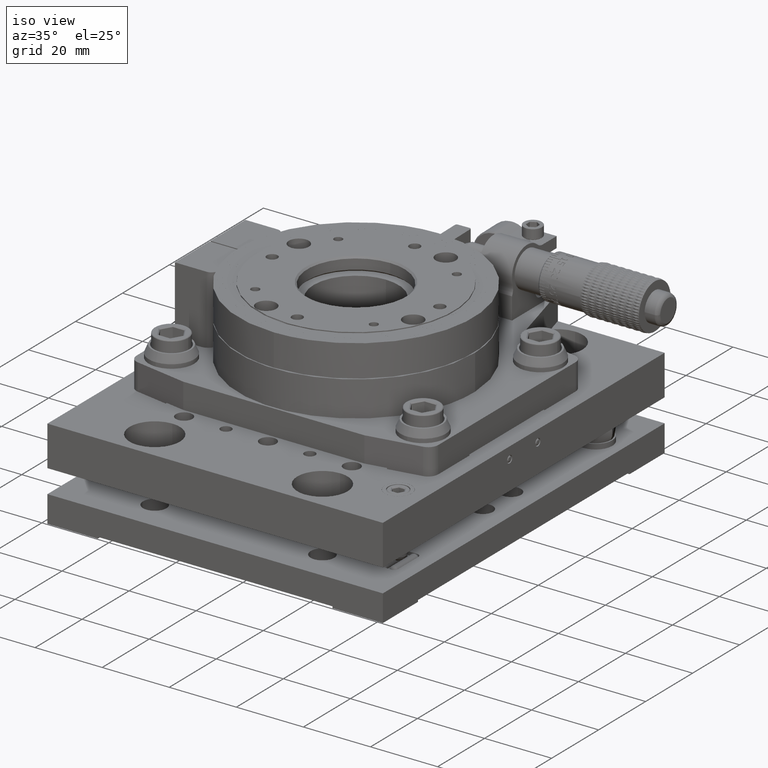
[diagram: clean part render]
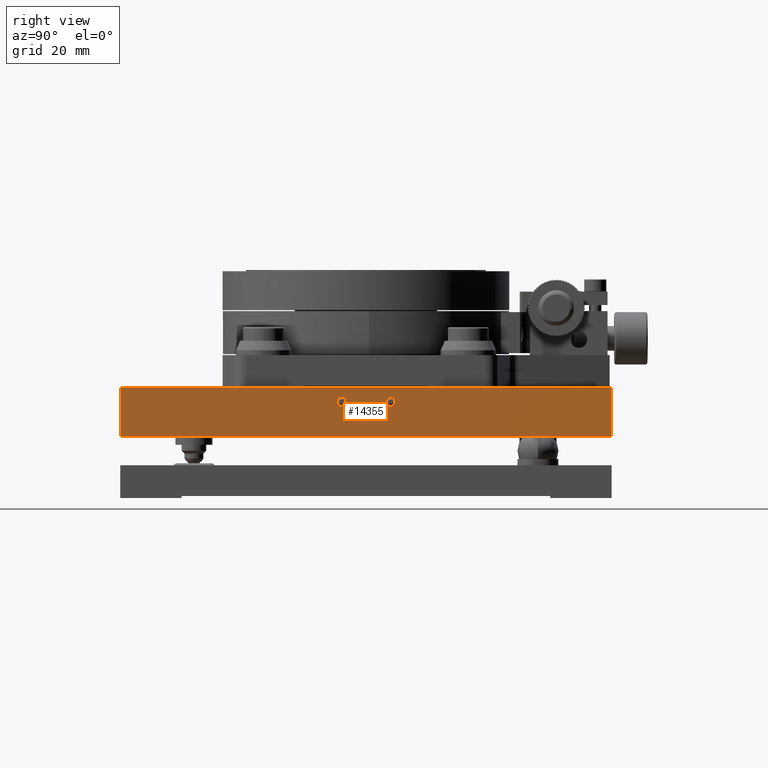
[diagram: tour spotlight — one face highlighted and labeled with its STEP entity id]
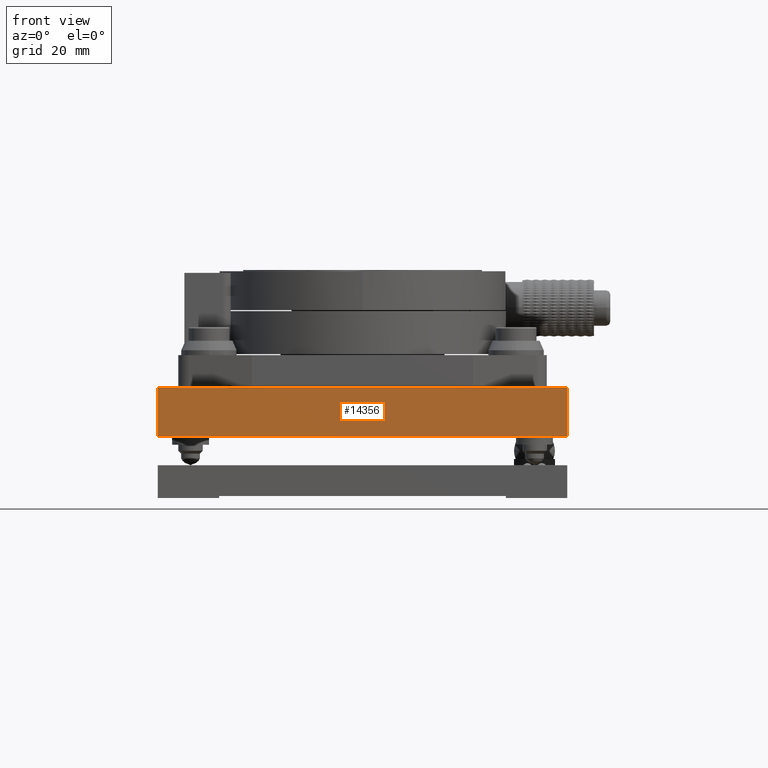
[diagram: tour spotlight — one face highlighted and labeled with its STEP entity id]
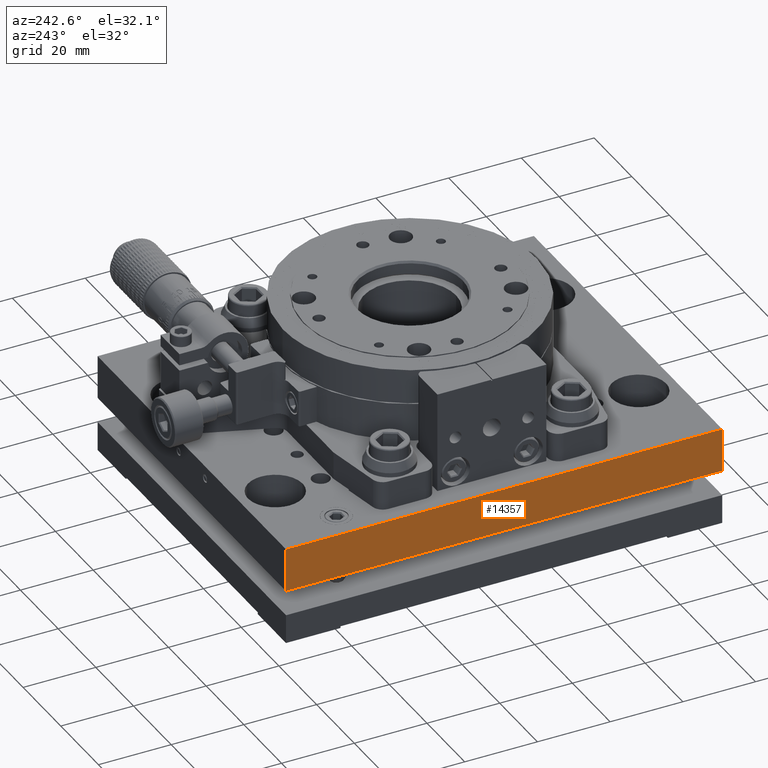
[diagram: tour spotlight — one face highlighted and labeled with its STEP entity id]
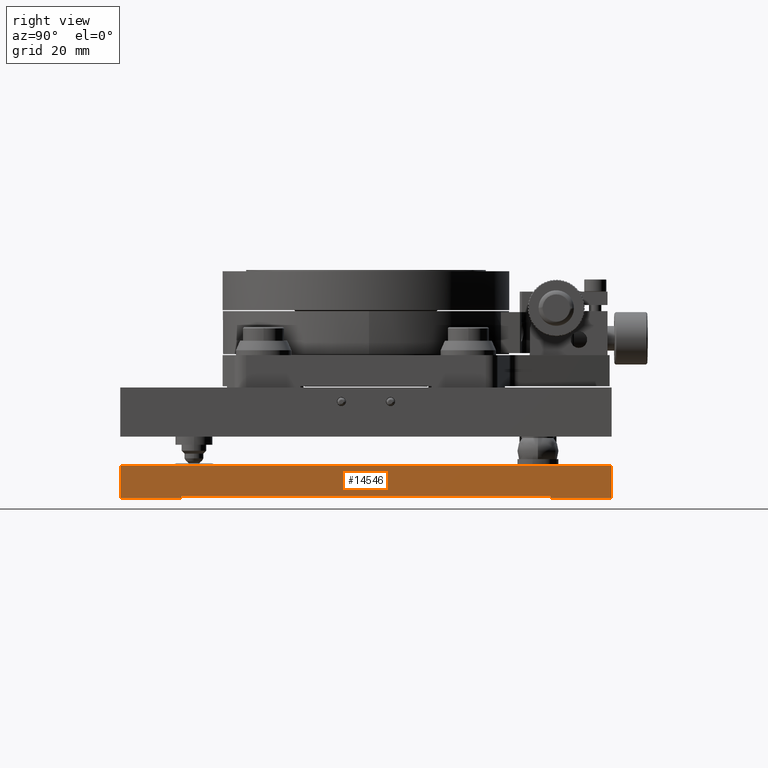
[diagram: tour spotlight — one face highlighted and labeled with its STEP entity id]
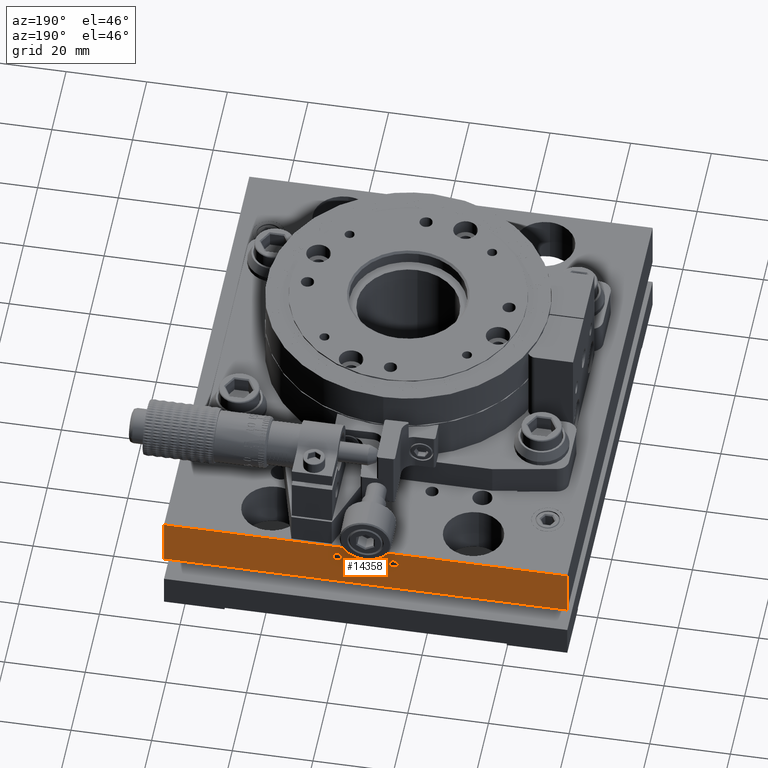
[diagram: tour spotlight — one face highlighted and labeled with its STEP entity id]
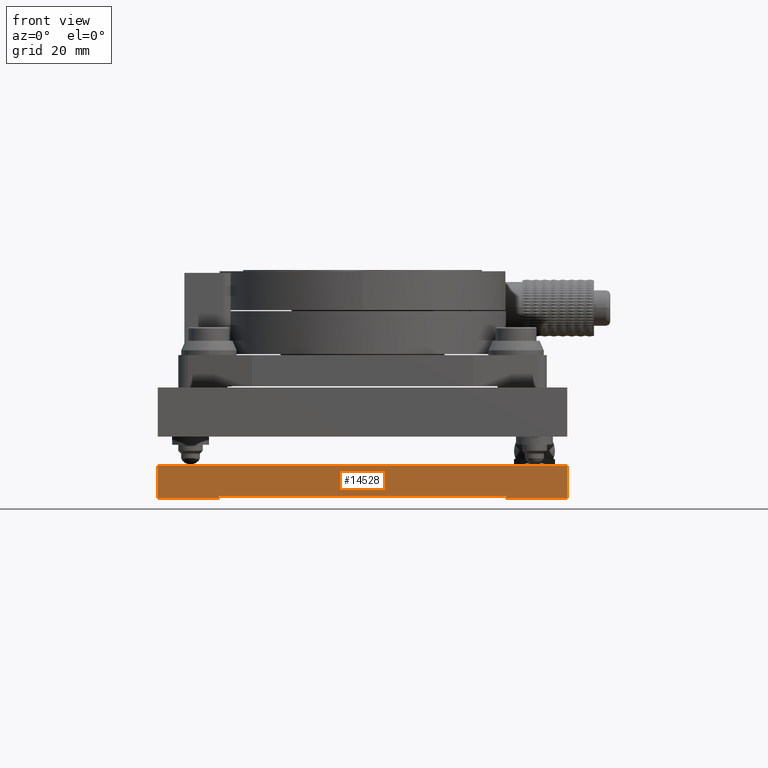
[diagram: tour spotlight — one face highlighted and labeled with its STEP entity id]
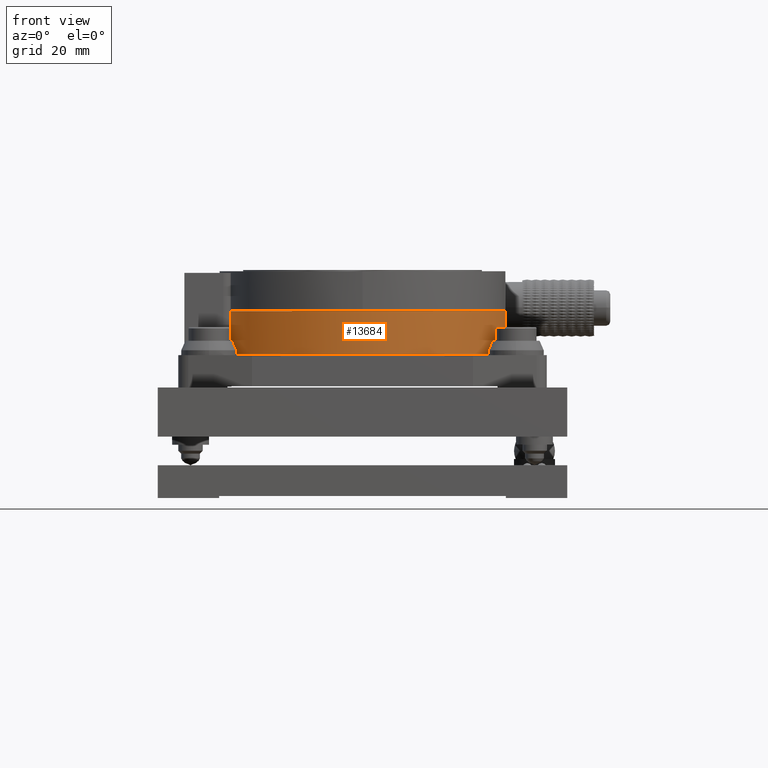
[diagram: tour spotlight — one face highlighted and labeled with its STEP entity id]
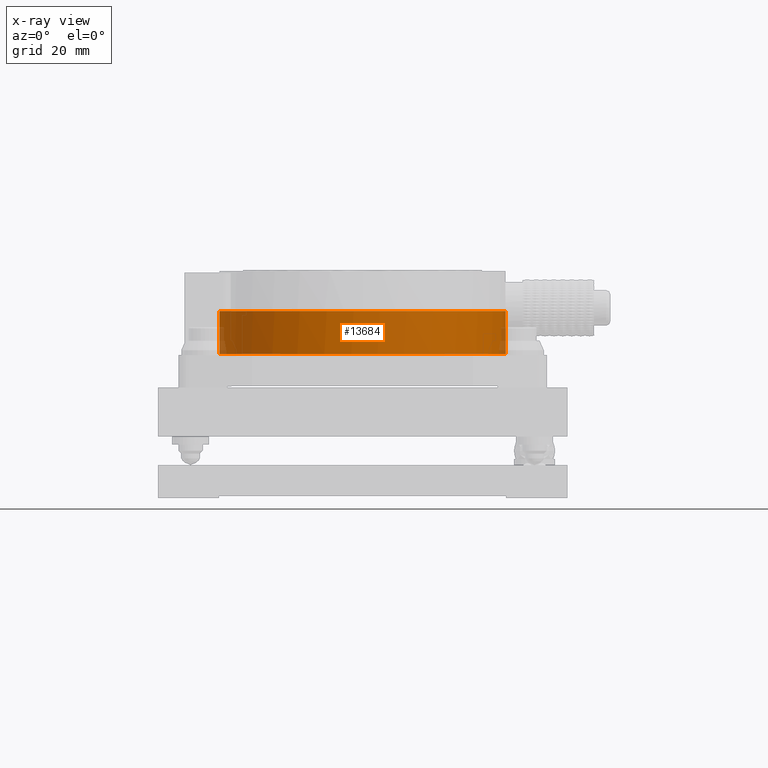
[diagram: x-ray of the same camera — body ghosted, this tour face saturated]
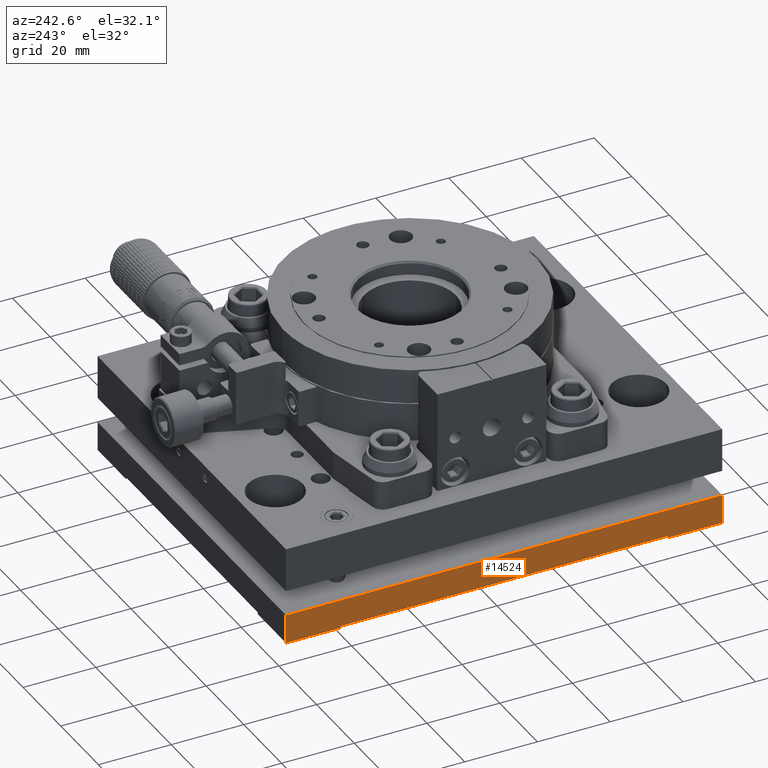
[diagram: tour spotlight — one face highlighted and labeled with its STEP entity id]
A machine part: a face-by-face anatomy tour. The part has 6025 B-rep faces; the first image is the clean iso view, then the 8 largest visible faces are spotlighted one at a time (largest first), each with its STEP entity span.

Face 1 — right view, entity #14355. In plain terms, the highlighted planar face has unit normal (1, 0, 0).
Definition (entity closure, byte-faithful):
#8463=FACE_BOUND('',#26957,.T.);
#8464=FACE_BOUND('',#26958,.T.);
#14355=ADVANCED_FACE('',(#20380,#8463,#8464),#110229,.T.);
#20380=FACE_OUTER_BOUND('',#26956,.T.);
#26956=EDGE_LOOP('',(#60093,#60094,#60095,#60096));
#26957=EDGE_LOOP('',(#60097,#60098,#60099,#60100));
#26958=EDGE_LOOP('',(#60101,#60102,#60103,#60104));
#60093=ORIENTED_EDGE('',*,*,#77681,.T.);
#60094=ORIENTED_EDGE('',*,*,#77682,.T.);
#60095=ORIENTED_EDGE('',*,*,#77683,.T.);
#60096=ORIENTED_EDGE('',*,*,#77622,.T.);
#60097=ORIENTED_EDGE('',*,*,#77468,.T.);
#60098=ORIENTED_EDGE('',*,*,#77467,.T.);
#60099=ORIENTED_EDGE('',*,*,#77466,.T.);
#60100=ORIENTED_EDGE('',*,*,#77701,.T.);
#60101=ORIENTED_EDGE('',*,*,#77476,.T.);
#60102=ORIENTED_EDGE('',*,*,#77475,.T.);
#60103=ORIENTED_EDGE('',*,*,#77474,.T.);
#60104=ORIENTED_EDGE('',*,*,#77707,.T.);
#77466=EDGE_CURVE('',#105369,#105543,#94764,.T.);
#77467=EDGE_CURVE('',#105371,#105369,#94765,.T.);
#77468=EDGE_CURVE('',#105370,#105371,#94766,.T.);
#77474=EDGE_CURVE('',#105381,#105547,#94770,.T.);
#77475=EDGE_CURVE('',#105383,#105381,#94771,.T.);
#77476=EDGE_CURVE('',#105382,#105383,#94772,.T.);
#77622=EDGE_CURVE('',#105508,#105506,#92714,.T.);
#77681=EDGE_CURVE('',#105506,#105532,#92747,.T.);
#77682=EDGE_CURVE('',#105532,#105533,#92748,.T.);
#77683=EDGE_CURVE('',#105533,#105508,#92749,.T.);
#77701=EDGE_CURVE('',#105543,#105370,#94905,.T.);
#77707=EDGE_CURVE('',#105547,#105382,#94907,.T.);
#92714=B_SPLINE_CURVE_WITH_KNOTS('',1,(#192679,#192680),.UNSPECIFIED.,.F.,
 .F.,(2,2),(-120.,0.),.UNSPECIFIED.);
#92747=B_SPLINE_CURVE_WITH_KNOTS('',1,(#193277,#193278),.UNSPECIFIED.,.F.,
 .F.,(2,2),(0.,12.),.UNSPECIFIED.);
#92748=B_SPLINE_CURVE_WITH_KNOTS('',1,(#193279,#193280),.UNSPECIFIED.,.F.,
 .F.,(2,2),(0.,120.),.UNSPECIFIED.);
#92749=B_SPLINE_CURVE_WITH_KNOTS('',1,(#193281,#193282),.UNSPECIFIED.,.F.,
 .F.,(2,2),(0.,12.),.UNSPECIFIED.);
#94764=(
BOUNDED_CURVE()
B_SPLINE_CURVE(2,(#191895,#191896,#191897),.UNSPECIFIED.,.F.,.F.)
B_SPLINE_CURVE_WITH_KNOTS((3,3),(-3.45575191894877,-1.72787595947439),
 .UNSPECIFIED.)
CURVE()
GEOMETRIC_REPRESENTATION_ITEM()
RATIONAL_B_SPLINE_CURVE((1.,0.707106781186547,1.))
REPRESENTATION_ITEM('')
);
#94765=(
BOUNDED_CURVE()
B_SPLINE_CURVE(2,(#191898,#191899,#191900),.UNSPECIFIED.,.F.,.F.)
B_SPLINE_CURVE_WITH_KNOTS((3,3),(-1.72787595947439,0.),.UNSPECIFIED.)
CURVE()
GEOMETRIC_REPRESENTATION_ITEM()
RATIONAL_B_SPLINE_CURVE((1.,0.707106781186548,1.))
REPRESENTATION_ITEM('')
);
#94766=(
BOUNDED_CURVE()
B_SPLINE_CURVE(2,(#191901,#191902,#191903),.UNSPECIFIED.,.F.,.F.)
B_SPLINE_CURVE_WITH_KNOTS((3,3),(-3.45575191894877,-1.72787595947439),
 .UNSPECIFIED.)
CURVE()
GEOMETRIC_REPRESENTATION_ITEM()
RATIONAL_B_SPLINE_CURVE((1.,0.707106781186548,1.))
REPRESENTATION_ITEM('')
);
#94770=(
BOUNDED_CURVE()
B_SPLINE_CURVE(2,(#191917,#191918,#191919),.UNSPECIFIED.,.F.,.F.)
B_SPLINE_CURVE_WITH_KNOTS((3,3),(-3.45575191894877,-1.72787595947439),
 .UNSPECIFIED.)
CURVE()
GEOMETRIC_REPRESENTATION_ITEM()
RATIONAL_B_SPLINE_CURVE((1.,0.707106781186548,1.))
REPRESENTATION_ITEM('')
);
#94771=(
BOUNDED_CURVE()
B_SPLINE_CURVE(2,(#191920,#191921,#191922),.UNSPECIFIED.,.F.,.F.)
B_SPLINE_CURVE_WITH_KNOTS((3,3),(-1.72787595947439,0.),.UNSPECIFIED.)
CURVE()
GEOMETRIC_REPRESENTATION_ITEM()
RATIONAL_B_SPLINE_CURVE((1.,0.707106781186548,1.))
REPRESENTATION_ITEM('')
);
#94772=(
BOUNDED_CURVE()
B_SPLINE_CURVE(2,(#191923,#191924,#191925),.UNSPECIFIED.,.F.,.F.)
B_SPLINE_CURVE_WITH_KNOTS((3,3),(-3.45575191894877,-1.72787595947439),
 .UNSPECIFIED.)
CURVE()
GEOMETRIC_REPRESENTATION_ITEM()
RATIONAL_B_SPLINE_CURVE((1.,0.707106781186548,1.))
REPRESENTATION_ITEM('')
);
#94905=(
BOUNDED_CURVE()
B_SPLINE_CURVE(2,(#193353,#193354,#193355),.UNSPECIFIED.,.F.,.F.)
B_SPLINE_CURVE_WITH_KNOTS((3,3),(-1.72787595947439,0.),.UNSPECIFIED.)
CURVE()
GEOMETRIC_REPRESENTATION_ITEM()
RATIONAL_B_SPLINE_CURVE((1.,0.707106781186548,1.))
REPRESENTATION_ITEM('')
);
#94907=(
BOUNDED_CURVE()
B_SPLINE_CURVE(2,(#193413,#193414,#193415),.UNSPECIFIED.,.F.,.F.)
B_SPLINE_CURVE_WITH_KNOTS((3,3),(-1.72787595947439,0.),.UNSPECIFIED.)
CURVE()
GEOMETRIC_REPRESENTATION_ITEM()
RATIONAL_B_SPLINE_CURVE((1.,0.707106781186548,1.))
REPRESENTATION_ITEM('')
);
#105369=VERTEX_POINT('',#191586);
#105370=VERTEX_POINT('',#191587);
#105371=VERTEX_POINT('',#191588);
#105381=VERTEX_POINT('',#191598);
#105382=VERTEX_POINT('',#191599);
#105383=VERTEX_POINT('',#191600);
#105506=VERTEX_POINT('',#191723);
#105508=VERTEX_POINT('',#191725);
#105532=VERTEX_POINT('',#191749);
#105533=VERTEX_POINT('',#191750);
#105543=VERTEX_POINT('',#191760);
#105547=VERTEX_POINT('',#191764);
#110229=PLANE('',#116189);
#116189=AXIS2_PLACEMENT_3D('',#191511,#121337,$);
#121337=DIRECTION('',(1.,0.,0.));
#191511=CARTESIAN_POINT('',(44.7501054007326,-76.5277156503218,28.3201011709705));
#191586=CARTESIAN_POINT('',(44.7501054007326,2.69228434967825,23.5001011709705));
#191587=CARTESIAN_POINT('',(44.7501054007326,0.492284349678258,23.5001011709705));
#191588=CARTESIAN_POINT('',(44.7501054007326,1.59228434967825,24.6001011709705));
#191598=CARTESIAN_POINT('',(44.7501054007326,-9.30771565032174,23.5001011709705));
#191599=CARTESIAN_POINT('',(44.7501054007326,-11.5077156503217,23.5001011709705));
#191600=CARTESIAN_POINT('',(44.7501054007326,-10.4077156503217,24.6001011709705));
#191723=CARTESIAN_POINT('',(44.7501054007326,-64.4077156503217,27.0001011709705));
#191725=CARTESIAN_POINT('',(44.7501054007326,55.5922843496783,27.0001011709705));
#191749=CARTESIAN_POINT('',(44.7501054007326,-64.4077156503217,15.0001011709705));
#191750=CARTESIAN_POINT('',(44.7501054007326,55.5922843496783,15.0001011709705));
#191760=CARTESIAN_POINT('',(44.7501054007326,1.59228434967825,22.4001011709705));
#191764=CARTESIAN_POINT('',(44.7501054007326,-10.4077156503217,22.4001011709705));
#191895=CARTESIAN_POINT('',(44.7501054007326,2.69228434967825,23.5001011709705));
#191896=CARTESIAN_POINT('',(44.7501054007326,2.69228434967825,22.4001011709705));
#191897=CARTESIAN_POINT('',(44.7501054007326,1.59228434967825,22.4001011709705));
#191898=CARTESIAN_POINT('',(44.7501054007326,1.59228434967825,24.6001011709705));
#191899=CARTESIAN_POINT('',(44.7501054007326,2.69228434967825,24.6001011709705));
#191900=CARTESIAN_POINT('',(44.7501054007326,2.69228434967825,23.5001011709705));
#191901=CARTESIAN_POINT('',(44.7501054007326,0.492284349678252,23.5001011709705));
#191902=CARTESIAN_POINT('',(44.7501054007326,0.492284349678252,24.6001011709705));
#191903=CARTESIAN_POINT('',(44.7501054007326,1.59228434967825,24.6001011709705));
#191917=CARTESIAN_POINT('',(44.7501054007326,-9.30771565032174,23.5001011709705));
#191918=CARTESIAN_POINT('',(44.7501054007326,-9.30771565032174,22.4001011709705));
#191919=CARTESIAN_POINT('',(44.7501054007326,-10.4077156503217,22.4001011709705));
#191920=CARTESIAN_POINT('',(44.7501054007326,-10.4077156503217,24.6001011709705));
#191921=CARTESIAN_POINT('',(44.7501054007326,-9.30771565032174,24.6001011709705));
#191922=CARTESIAN_POINT('',(44.7501054007326,-9.30771565032174,23.5001011709705));
#191923=CARTESIAN_POINT('',(44.7501054007326,-11.5077156503217,23.5001011709705));
#191924=CARTESIAN_POINT('',(44.7501054007326,-11.5077156503217,24.6001011709705));
#191925=CARTESIAN_POINT('',(44.7501054007326,-10.4077156503217,24.6001011709705));
#192679=CARTESIAN_POINT('',(44.7501054007326,55.5922843496783,27.0001011709705));
#192680=CARTESIAN_POINT('',(44.7501054007326,-64.4077156503217,27.0001011709705));
#193277=CARTESIAN_POINT('',(44.7501054007326,-64.4077156503217,27.0001011709705));
#193278=CARTESIAN_POINT('',(44.7501054007326,-64.4077156503217,15.0001011709705));
#193279=CARTESIAN_POINT('',(44.7501054007326,-64.4077156503217,15.0001011709705));
#193280=CARTESIAN_POINT('',(44.7501054007326,55.5922843496783,15.0001011709705));
#193281=CARTESIAN_POINT('',(44.7501054007326,55.5922843496783,15.0001011709705));
#193282=CARTESIAN_POINT('',(44.7501054007326,55.5922843496783,27.0001011709705));
#193353=CARTESIAN_POINT('',(44.7501054007326,1.59228434967825,22.4001011709705));
#193354=CARTESIAN_POINT('',(44.7501054007326,0.492284349678252,22.4001011709705));
#193355=CARTESIAN_POINT('',(44.7501054007326,0.492284349678252,23.5001011709705));
#193413=CARTESIAN_POINT('',(44.7501054007326,-10.4077156503217,22.4001011709705));
#193414=CARTESIAN_POINT('',(44.7501054007326,-11.5077156503217,22.4001011709705));
#193415=CARTESIAN_POINT('',(44.7501054007326,-11.5077156503217,23.5001011709705));

Face 2 — front view, entity #14356. In plain terms, the highlighted planar face has unit normal (0, -1, 0).
Definition (entity closure, byte-faithful):
#14356=ADVANCED_FACE('',(#20381),#110230,.T.);
#20381=FACE_OUTER_BOUND('',#26959,.T.);
#26959=EDGE_LOOP('',(#60105,#60106,#60107,#60108));
#60105=ORIENTED_EDGE('',*,*,#77684,.T.);
#60106=ORIENTED_EDGE('',*,*,#77685,.T.);
#60107=ORIENTED_EDGE('',*,*,#77681,.F.);
#60108=ORIENTED_EDGE('',*,*,#77621,.T.);
#77621=EDGE_CURVE('',#105506,#105507,#92713,.T.);
#77681=EDGE_CURVE('',#105506,#105532,#92747,.T.);
#77684=EDGE_CURVE('',#105507,#105534,#92750,.T.);
#77685=EDGE_CURVE('',#105534,#105532,#92751,.T.);
#92713=B_SPLINE_CURVE_WITH_KNOTS('',1,(#192677,#192678),.UNSPECIFIED.,.F.,
 .F.,(2,2),(-100.,0.),.UNSPECIFIED.);
#92747=B_SPLINE_CURVE_WITH_KNOTS('',1,(#193277,#193278),.UNSPECIFIED.,.F.,
 .F.,(2,2),(0.,12.),.UNSPECIFIED.);
#92750=B_SPLINE_CURVE_WITH_KNOTS('',1,(#193283,#193284),.UNSPECIFIED.,.F.,
 .F.,(2,2),(0.,12.),.UNSPECIFIED.);
#92751=B_SPLINE_CURVE_WITH_KNOTS('',1,(#193285,#193286),.UNSPECIFIED.,.F.,
 .F.,(2,2),(0.,100.),.UNSPECIFIED.);
#105506=VERTEX_POINT('',#191723);
#105507=VERTEX_POINT('',#191724);
#105532=VERTEX_POINT('',#191749);
#105534=VERTEX_POINT('',#191751);
#110230=PLANE('',#116190);
#116190=AXIS2_PLACEMENT_3D('',#191512,#121338,$);
#121338=DIRECTION('',(0.,-1.,0.));
#191512=CARTESIAN_POINT('',(-65.3698945992674,-64.4077156503217,28.3201011709705));
#191723=CARTESIAN_POINT('',(44.7501054007326,-64.4077156503217,27.0001011709705));
#191724=CARTESIAN_POINT('',(-55.2498945992674,-64.4077156503217,27.0001011709705));
#191749=CARTESIAN_POINT('',(44.7501054007326,-64.4077156503217,15.0001011709705));
#191751=CARTESIAN_POINT('',(-55.2498945992674,-64.4077156503217,15.0001011709705));
#192677=CARTESIAN_POINT('',(44.7501054007326,-64.4077156503217,27.0001011709705));
#192678=CARTESIAN_POINT('',(-55.2498945992674,-64.4077156503217,27.0001011709705));
#193277=CARTESIAN_POINT('',(44.7501054007326,-64.4077156503217,27.0001011709705));
#193278=CARTESIAN_POINT('',(44.7501054007326,-64.4077156503217,15.0001011709705));
#193283=CARTESIAN_POINT('',(-55.2498945992674,-64.4077156503217,27.0001011709705));
#193284=CARTESIAN_POINT('',(-55.2498945992674,-64.4077156503217,15.0001011709705));
#193285=CARTESIAN_POINT('',(-55.2498945992674,-64.4077156503217,15.0001011709705));
#193286=CARTESIAN_POINT('',(44.7501054007326,-64.4077156503217,15.0001011709705));

Face 3 — auxiliary view, entity #14357. In plain terms, the highlighted planar face has unit normal (-1, 0, 0).
Definition (entity closure, byte-faithful):
#14357=ADVANCED_FACE('',(#20382),#110231,.T.);
#20382=FACE_OUTER_BOUND('',#26960,.T.);
#26960=EDGE_LOOP('',(#60109,#60110,#60111,#60112));
#60109=ORIENTED_EDGE('',*,*,#77686,.T.);
#60110=ORIENTED_EDGE('',*,*,#77687,.T.);
#60111=ORIENTED_EDGE('',*,*,#77684,.F.);
#60112=ORIENTED_EDGE('',*,*,#77624,.T.);
#77624=EDGE_CURVE('',#105507,#105509,#92716,.T.);
#77684=EDGE_CURVE('',#105507,#105534,#92750,.T.);
#77686=EDGE_CURVE('',#105509,#105535,#92752,.T.);
#77687=EDGE_CURVE('',#105535,#105534,#92753,.T.);
#92716=B_SPLINE_CURVE_WITH_KNOTS('',1,(#192683,#192684),.UNSPECIFIED.,.F.,
 .F.,(2,2),(-120.,0.),.UNSPECIFIED.);
#92750=B_SPLINE_CURVE_WITH_KNOTS('',1,(#193283,#193284),.UNSPECIFIED.,.F.,
 .F.,(2,2),(0.,12.),.UNSPECIFIED.);
#92752=B_SPLINE_CURVE_WITH_KNOTS('',1,(#193287,#193288),.UNSPECIFIED.,.F.,
 .F.,(2,2),(0.,12.),.UNSPECIFIED.);
#92753=B_SPLINE_CURVE_WITH_KNOTS('',1,(#193289,#193290),.UNSPECIFIED.,.F.,
 .F.,(2,2),(0.,120.),.UNSPECIFIED.);
#105507=VERTEX_POINT('',#191724);
#105509=VERTEX_POINT('',#191726);
#105534=VERTEX_POINT('',#191751);
#105535=VERTEX_POINT('',#191752);
#110231=PLANE('',#116191);
#116191=AXIS2_PLACEMENT_3D('',#191513,#121339,$);
#121339=DIRECTION('',(-1.,0.,0.));
#191513=CARTESIAN_POINT('',(-55.2498945992674,-76.5277156503218,13.6801011709705));
#191724=CARTESIAN_POINT('',(-55.2498945992674,-64.4077156503217,27.0001011709705));
#191726=CARTESIAN_POINT('',(-55.2498945992674,55.5922843496783,27.0001011709705));
#191751=CARTESIAN_POINT('',(-55.2498945992674,-64.4077156503217,15.0001011709705));
#191752=CARTESIAN_POINT('',(-55.2498945992674,55.5922843496783,15.0001011709705));
#192683=CARTESIAN_POINT('',(-55.2498945992674,-64.4077156503217,27.0001011709705));
#192684=CARTESIAN_POINT('',(-55.2498945992674,55.5922843496783,27.0001011709705));
#193283=CARTESIAN_POINT('',(-55.2498945992674,-64.4077156503217,27.0001011709705));
#193284=CARTESIAN_POINT('',(-55.2498945992674,-64.4077156503217,15.0001011709705));
#193287=CARTESIAN_POINT('',(-55.2498945992674,55.5922843496783,27.0001011709705));
#193288=CARTESIAN_POINT('',(-55.2498945992674,55.5922843496783,15.0001011709705));
#193289=CARTESIAN_POINT('',(-55.2498945992674,55.5922843496783,15.0001011709705));
#193290=CARTESIAN_POINT('',(-55.2498945992674,-64.4077156503217,15.0001011709705));

Face 4 — right view, entity #14546. In plain terms, the highlighted planar face has unit normal (1, 0, 0).
Definition (entity closure, byte-faithful):
#14546=ADVANCED_FACE('',(#20571),#110300,.T.);
#20571=FACE_OUTER_BOUND('',#27216,.T.);
#27216=EDGE_LOOP('',(#61120,#61121,#61122,#61123,#61124,#61125,#61126,#61127));
#61120=ORIENTED_EDGE('',*,*,#78003,.T.);
#61121=ORIENTED_EDGE('',*,*,#78119,.T.);
#61122=ORIENTED_EDGE('',*,*,#78081,.F.);
#61123=ORIENTED_EDGE('',*,*,#77988,.F.);
#61124=ORIENTED_EDGE('',*,*,#78089,.F.);
#61125=ORIENTED_EDGE('',*,*,#78087,.T.);
#61126=ORIENTED_EDGE('',*,*,#78005,.T.);
#61127=ORIENTED_EDGE('',*,*,#78019,.T.);
#77988=EDGE_CURVE('',#105735,#105736,#92879,.T.);
#78003=EDGE_CURVE('',#105759,#105760,#92894,.T.);
#78005=EDGE_CURVE('',#105763,#105761,#92896,.T.);
#78019=EDGE_CURVE('',#105761,#105759,#92910,.T.);
#78081=EDGE_CURVE('',#105736,#105818,#92948,.T.);
#78087=EDGE_CURVE('',#105820,#105763,#92954,.T.);
#78089=EDGE_CURVE('',#105820,#105735,#92956,.T.);
#78119=EDGE_CURVE('',#105760,#105818,#92965,.T.);
#92879=B_SPLINE_CURVE_WITH_KNOTS('',1,(#195233,#195234),.UNSPECIFIED.,.F.,
 .F.,(2,2),(0.,120.),.UNSPECIFIED.);
#92894=B_SPLINE_CURVE_WITH_KNOTS('',1,(#195263,#195264),.UNSPECIFIED.,.F.,
 .F.,(2,2),(-0.5,0.),.UNSPECIFIED.);
#92896=B_SPLINE_CURVE_WITH_KNOTS('',1,(#195267,#195268),.UNSPECIFIED.,.F.,
 .F.,(2,2),(-0.5,0.),.UNSPECIFIED.);
#92910=B_SPLINE_CURVE_WITH_KNOTS('',1,(#195295,#195296),.UNSPECIFIED.,.F.,
 .F.,(2,2),(-90.,0.),.UNSPECIFIED.);
#92948=B_SPLINE_CURVE_WITH_KNOTS('',1,(#195459,#195460),.UNSPECIFIED.,.F.,
 .F.,(2,2),(0.,8.),.UNSPECIFIED.);
#92954=B_SPLINE_CURVE_WITH_KNOTS('',1,(#195471,#195472),.UNSPECIFIED.,.F.,
 .F.,(2,2),(-15.,0.),.UNSPECIFIED.);
#92956=B_SPLINE_CURVE_WITH_KNOTS('',1,(#195475,#195476),.UNSPECIFIED.,.F.,
 .F.,(2,2),(0.,8.),.UNSPECIFIED.);
#92965=B_SPLINE_CURVE_WITH_KNOTS('',1,(#195582,#195583),.UNSPECIFIED.,.F.,
 .F.,(2,2),(-15.,0.),.UNSPECIFIED.);
#105735=VERTEX_POINT('',#194979);
#105736=VERTEX_POINT('',#194980);
#105759=VERTEX_POINT('',#195003);
#105760=VERTEX_POINT('',#195004);
#105761=VERTEX_POINT('',#195005);
#105763=VERTEX_POINT('',#195007);
#105818=VERTEX_POINT('',#195062);
#105820=VERTEX_POINT('',#195064);
#110300=PLANE('',#116350);
#116350=AXIS2_PLACEMENT_3D('',#194910,#121498,$);
#121498=DIRECTION('',(1.,0.,0.));
#194910=CARTESIAN_POINT('',(44.7501054007325,-76.5277156503218,8.92010117097049));
#194979=CARTESIAN_POINT('',(44.7501054007325,-64.4077156503218,8.00010117097048));
#194980=CARTESIAN_POINT('',(44.7501054007325,55.5922843496782,8.00010117097048));
#195003=CARTESIAN_POINT('',(44.7501054007325,40.5922843496782,0.500101170970486));
#195004=CARTESIAN_POINT('',(44.7501054007325,40.5922843496782,0.000101170970485676));
#195005=CARTESIAN_POINT('',(44.7501054007325,-49.4077156503218,0.500101170970486));
#195007=CARTESIAN_POINT('',(44.7501054007325,-49.4077156503218,0.000101170970485676));
#195062=CARTESIAN_POINT('',(44.7501054007325,55.5922843496782,0.000101170970485676));
#195064=CARTESIAN_POINT('',(44.7501054007325,-64.4077156503218,0.000101170970485676));
#195233=CARTESIAN_POINT('',(44.7501054007325,-64.4077156503218,8.00010117097048));
#195234=CARTESIAN_POINT('',(44.7501054007325,55.5922843496782,8.00010117097048));
#195263=CARTESIAN_POINT('',(44.7501054007325,40.5922843496782,0.500101170970486));
#195264=CARTESIAN_POINT('',(44.7501054007325,40.5922843496782,0.000101170970485676));
#195267=CARTESIAN_POINT('',(44.7501054007325,-49.4077156503218,0.000101170970485676));
#195268=CARTESIAN_POINT('',(44.7501054007325,-49.4077156503218,0.500101170970486));
#195295=CARTESIAN_POINT('',(44.7501054007325,-49.4077156503218,0.500101170970486));
#195296=CARTESIAN_POINT('',(44.7501054007325,40.5922843496782,0.500101170970486));
#195459=CARTESIAN_POINT('',(44.7501054007325,55.5922843496782,8.00010117097048));
#195460=CARTESIAN_POINT('',(44.7501054007325,55.5922843496782,0.000101170970485676));
#195471=CARTESIAN_POINT('',(44.7501054007325,-64.4077156503218,0.000101170970485676));
#195472=CARTESIAN_POINT('',(44.7501054007325,-49.4077156503218,0.000101170970485676));
#195475=CARTESIAN_POINT('',(44.7501054007325,-64.4077156503218,0.000101170970485676));
#195476=CARTESIAN_POINT('',(44.7501054007325,-64.4077156503218,8.00010117097048));
#195582=CARTESIAN_POINT('',(44.7501054007325,40.5922843496782,0.000101170970485676));
#195583=CARTESIAN_POINT('',(44.7501054007325,55.5922843496782,0.000101170970485676));

Face 5 — auxiliary view, entity #14358. In plain terms, the highlighted planar face has unit normal (0, 1, 0).
Definition (entity closure, byte-faithful):
#8465=FACE_BOUND('',#26962,.T.);
#8466=FACE_BOUND('',#26963,.T.);
#14358=ADVANCED_FACE('',(#20383,#8465,#8466),#110232,.T.);
#20383=FACE_OUTER_BOUND('',#26961,.T.);
#26961=EDGE_LOOP('',(#60113,#60114,#60115,#60116));
#26962=EDGE_LOOP('',(#60117,#60118,#60119,#60120));
#26963=EDGE_LOOP('',(#60121,#60122,#60123,#60124));
#60113=ORIENTED_EDGE('',*,*,#77683,.F.);
#60114=ORIENTED_EDGE('',*,*,#77688,.T.);
#60115=ORIENTED_EDGE('',*,*,#77686,.F.);
#60116=ORIENTED_EDGE('',*,*,#77623,.T.);
#60117=ORIENTED_EDGE('',*,*,#77487,.T.);
#60118=ORIENTED_EDGE('',*,*,#77486,.T.);
#60119=ORIENTED_EDGE('',*,*,#77485,.T.);
#60120=ORIENTED_EDGE('',*,*,#77712,.T.);
#60121=ORIENTED_EDGE('',*,*,#77499,.T.);
#60122=ORIENTED_EDGE('',*,*,#77498,.T.);
#60123=ORIENTED_EDGE('',*,*,#77497,.T.);
#60124=ORIENTED_EDGE('',*,*,#77716,.T.);
#77485=EDGE_CURVE('',#105393,#105549,#94776,.T.);
#77486=EDGE_CURVE('',#105395,#105393,#94777,.T.);
#77487=EDGE_CURVE('',#105394,#105395,#94778,.T.);
#77497=EDGE_CURVE('',#105406,#105551,#94782,.T.);
#77498=EDGE_CURVE('',#105408,#105406,#94783,.T.);
#77499=EDGE_CURVE('',#105407,#105408,#94784,.T.);
#77623=EDGE_CURVE('',#105509,#105508,#92715,.T.);
#77683=EDGE_CURVE('',#105533,#105508,#92749,.T.);
#77686=EDGE_CURVE('',#105509,#105535,#92752,.T.);
#77688=EDGE_CURVE('',#105533,#105535,#92754,.T.);
#77712=EDGE_CURVE('',#105549,#105394,#94909,.T.);
#77716=EDGE_CURVE('',#105551,#105407,#94911,.T.);
#92715=B_SPLINE_CURVE_WITH_KNOTS('',1,(#192681,#192682),.UNSPECIFIED.,.F.,
 .F.,(2,2),(-100.,0.),.UNSPECIFIED.);
#92749=B_SPLINE_CURVE_WITH_KNOTS('',1,(#193281,#193282),.UNSPECIFIED.,.F.,
 .F.,(2,2),(0.,12.),.UNSPECIFIED.);
#92752=B_SPLINE_CURVE_WITH_KNOTS('',1,(#193287,#193288),.UNSPECIFIED.,.F.,
 .F.,(2,2),(0.,12.),.UNSPECIFIED.);
#92754=B_SPLINE_CURVE_WITH_KNOTS('',1,(#193291,#193292),.UNSPECIFIED.,.F.,
 .F.,(2,2),(0.,100.),.UNSPECIFIED.);
#94776=(
BOUNDED_CURVE()
B_SPLINE_CURVE(2,(#192014,#192015,#192016),.UNSPECIFIED.,.F.,.F.)
B_SPLINE_CURVE_WITH_KNOTS((3,3),(-3.45575191894877,-1.72787595947439),
 .UNSPECIFIED.)
CURVE()
GEOMETRIC_REPRESENTATION_ITEM()
RATIONAL_B_SPLINE_CURVE((1.,0.707106781186548,1.))
REPRESENTATION_ITEM('')
);
#94777=(
BOUNDED_CURVE()
B_SPLINE_CURVE(2,(#192017,#192018,#192019),.UNSPECIFIED.,.F.,.F.)
B_SPLINE_CURVE_WITH_KNOTS((3,3),(-1.72787595947439,0.),.UNSPECIFIED.)
CURVE()
GEOMETRIC_REPRESENTATION_ITEM()
RATIONAL_B_SPLINE_CURVE((1.,0.707106781186548,1.))
REPRESENTATION_ITEM('')
);
#94778=(
BOUNDED_CURVE()
B_SPLINE_CURVE(2,(#192020,#192021,#192022),.UNSPECIFIED.,.F.,.F.)
B_SPLINE_CURVE_WITH_KNOTS((3,3),(-3.45575191894877,-1.72787595947439),
 .UNSPECIFIED.)
CURVE()
GEOMETRIC_REPRESENTATION_ITEM()
RATIONAL_B_SPLINE_CURVE((1.,0.707106781186548,1.))
REPRESENTATION_ITEM('')
);
#94782=(
BOUNDED_CURVE()
B_SPLINE_CURVE(2,(#192136,#192137,#192138),.UNSPECIFIED.,.F.,.F.)
B_SPLINE_CURVE_WITH_KNOTS((3,3),(-3.45575191894877,-1.72787595947439),
 .UNSPECIFIED.)
CURVE()
GEOMETRIC_REPRESENTATION_ITEM()
RATIONAL_B_SPLINE_CURVE((1.,0.707106781186548,1.))
REPRESENTATION_ITEM('')
);
#94783=(
BOUNDED_CURVE()
B_SPLINE_CURVE(2,(#192139,#192140,#192141),.UNSPECIFIED.,.F.,.F.)
B_SPLINE_CURVE_WITH_KNOTS((3,3),(-1.72787595947439,0.),.UNSPECIFIED.)
CURVE()
GEOMETRIC_REPRESENTATION_ITEM()
RATIONAL_B_SPLINE_CURVE((1.,0.707106781186548,1.))
REPRESENTATION_ITEM('')
);
#94784=(
BOUNDED_CURVE()
B_SPLINE_CURVE(2,(#192142,#192143,#192144),.UNSPECIFIED.,.F.,.F.)
B_SPLINE_CURVE_WITH_KNOTS((3,3),(-3.45575191894877,-1.72787595947439),
 .UNSPECIFIED.)
CURVE()
GEOMETRIC_REPRESENTATION_ITEM()
RATIONAL_B_SPLINE_CURVE((1.,0.707106781186548,1.))
REPRESENTATION_ITEM('')
);
#94909=(
BOUNDED_CURVE()
B_SPLINE_CURVE(2,(#193448,#193449,#193450),.UNSPECIFIED.,.F.,.F.)
B_SPLINE_CURVE_WITH_KNOTS((3,3),(-1.72787595947439,0.),.UNSPECIFIED.)
CURVE()
GEOMETRIC_REPRESENTATION_ITEM()
RATIONAL_B_SPLINE_CURVE((1.,0.707106781186548,1.))
REPRESENTATION_ITEM('')
);
#94911=(
BOUNDED_CURVE()
B_SPLINE_CURVE(2,(#193458,#193459,#193460),.UNSPECIFIED.,.F.,.F.)
B_SPLINE_CURVE_WITH_KNOTS((3,3),(-1.72787595947439,0.),.UNSPECIFIED.)
CURVE()
GEOMETRIC_REPRESENTATION_ITEM()
RATIONAL_B_SPLINE_CURVE((1.,0.707106781186548,1.))
REPRESENTATION_ITEM('')
);
#105393=VERTEX_POINT('',#191610);
#105394=VERTEX_POINT('',#191611);
#105395=VERTEX_POINT('',#191612);
#105406=VERTEX_POINT('',#191623);
#105407=VERTEX_POINT('',#191624);
#105408=VERTEX_POINT('',#191625);
#105508=VERTEX_POINT('',#191725);
#105509=VERTEX_POINT('',#191726);
#105533=VERTEX_POINT('',#191750);
#105535=VERTEX_POINT('',#191752);
#105549=VERTEX_POINT('',#191766);
#105551=VERTEX_POINT('',#191768);
#110232=PLANE('',#116192);
#116192=AXIS2_PLACEMENT_3D('',#191514,#121340,$);
#121340=DIRECTION('',(0.,1.,0.));
#191514=CARTESIAN_POINT('',(-65.3698945992674,55.5922843496783,13.6801011709705));
#191610=CARTESIAN_POINT('',(-12.2498945992674,55.5922843496783,24.6001011709705));
#191611=CARTESIAN_POINT('',(-12.2498945992674,55.5922843496783,22.4001011709705));
#191612=CARTESIAN_POINT('',(-11.1498945992674,55.5922843496783,23.5001011709705));
#191623=CARTESIAN_POINT('',(1.75010540073258,55.5922843496783,24.6001011709705));
#191624=CARTESIAN_POINT('',(1.75010540073258,55.5922843496783,22.4001011709705));
#191625=CARTESIAN_POINT('',(2.85010540073258,55.5922843496783,23.5001011709705));
#191725=CARTESIAN_POINT('',(44.7501054007326,55.5922843496783,27.0001011709705));
#191726=CARTESIAN_POINT('',(-55.2498945992674,55.5922843496783,27.0001011709705));
#191750=CARTESIAN_POINT('',(44.7501054007326,55.5922843496783,15.0001011709705));
#191752=CARTESIAN_POINT('',(-55.2498945992674,55.5922843496783,15.0001011709705));
#191766=CARTESIAN_POINT('',(-13.3498945992674,55.5922843496783,23.5001011709705));
#191768=CARTESIAN_POINT('',(0.650105400732579,55.5922843496783,23.5001011709705));
#192014=CARTESIAN_POINT('',(-12.2498945992674,55.5922843496783,24.6001011709705));
#192015=CARTESIAN_POINT('',(-13.3498945992674,55.5922843496782,24.6001011709705));
#192016=CARTESIAN_POINT('',(-13.3498945992674,55.5922843496783,23.5001011709705));
#192017=CARTESIAN_POINT('',(-11.1498945992674,55.5922843496783,23.5001011709705));
#192018=CARTESIAN_POINT('',(-11.1498945992674,55.5922843496782,24.6001011709705));
#192019=CARTESIAN_POINT('',(-12.2498945992674,55.5922843496783,24.6001011709705));
#192020=CARTESIAN_POINT('',(-12.2498945992674,55.5922843496783,22.4001011709705));
#192021=CARTESIAN_POINT('',(-11.1498945992674,55.5922843496782,22.4001011709705));
#192022=CARTESIAN_POINT('',(-11.1498945992674,55.5922843496783,23.5001011709705));
#192136=CARTESIAN_POINT('',(1.75010540073258,55.5922843496783,24.6001011709705));
#192137=CARTESIAN_POINT('',(0.650105400732579,55.5922843496782,24.6001011709705));
#192138=CARTESIAN_POINT('',(0.650105400732579,55.5922843496783,23.5001011709705));
#192139=CARTESIAN_POINT('',(2.85010540073258,55.5922843496783,23.5001011709705));
#192140=CARTESIAN_POINT('',(2.85010540073258,55.5922843496782,24.6001011709705));
#192141=CARTESIAN_POINT('',(1.75010540073258,55.5922843496783,24.6001011709705));
#192142=CARTESIAN_POINT('',(1.75010540073258,55.5922843496783,22.4001011709705));
#192143=CARTESIAN_POINT('',(2.85010540073258,55.5922843496782,22.4001011709705));
#192144=CARTESIAN_POINT('',(2.85010540073258,55.5922843496783,23.5001011709705));
#192681=CARTESIAN_POINT('',(-55.2498945992674,55.5922843496783,27.0001011709705));
#192682=CARTESIAN_POINT('',(44.7501054007326,55.5922843496783,27.0001011709705));
#193281=CARTESIAN_POINT('',(44.7501054007326,55.5922843496783,15.0001011709705));
#193282=CARTESIAN_POINT('',(44.7501054007326,55.5922843496783,27.0001011709705));
#193287=CARTESIAN_POINT('',(-55.2498945992674,55.5922843496783,27.0001011709705));
#193288=CARTESIAN_POINT('',(-55.2498945992674,55.5922843496783,15.0001011709705));
#193291=CARTESIAN_POINT('',(44.7501054007326,55.5922843496783,15.0001011709705));
#193292=CARTESIAN_POINT('',(-55.2498945992674,55.5922843496783,15.0001011709705));
#193448=CARTESIAN_POINT('',(-13.3498945992674,55.5922843496783,23.5001011709705));
#193449=CARTESIAN_POINT('',(-13.3498945992674,55.5922843496782,22.4001011709705));
#193450=CARTESIAN_POINT('',(-12.2498945992674,55.5922843496783,22.4001011709705));
#193458=CARTESIAN_POINT('',(0.650105400732579,55.5922843496783,23.5001011709705));
#193459=CARTESIAN_POINT('',(0.650105400732579,55.5922843496782,22.4001011709705));
#193460=CARTESIAN_POINT('',(1.75010540073258,55.5922843496783,22.4001011709705));

Face 6 — front view, entity #14528. In plain terms, the highlighted planar face has unit normal (0, -1, 0).
Definition (entity closure, byte-faithful):
#14528=ADVANCED_FACE('',(#20553),#110291,.T.);
#20553=FACE_OUTER_BOUND('',#27198,.T.);
#27198=EDGE_LOOP('',(#61033,#61034,#61035,#61036,#61037,#61038,#61039,#61040));
#61033=ORIENTED_EDGE('',*,*,#78012,.T.);
#61034=ORIENTED_EDGE('',*,*,#78020,.T.);
#61035=ORIENTED_EDGE('',*,*,#78010,.T.);
#61036=ORIENTED_EDGE('',*,*,#78088,.T.);
#61037=ORIENTED_EDGE('',*,*,#78089,.T.);
#61038=ORIENTED_EDGE('',*,*,#77987,.F.);
#61039=ORIENTED_EDGE('',*,*,#78084,.F.);
#61040=ORIENTED_EDGE('',*,*,#78086,.T.);
#77987=EDGE_CURVE('',#105734,#105735,#92878,.T.);
#78010=EDGE_CURVE('',#105765,#105766,#92901,.T.);
#78012=EDGE_CURVE('',#105769,#105767,#92903,.T.);
#78020=EDGE_CURVE('',#105767,#105765,#92911,.T.);
#78084=EDGE_CURVE('',#105819,#105734,#92951,.T.);
#78086=EDGE_CURVE('',#105819,#105769,#92953,.T.);
#78088=EDGE_CURVE('',#105766,#105820,#92955,.T.);
#78089=EDGE_CURVE('',#105820,#105735,#92956,.T.);
#92878=B_SPLINE_CURVE_WITH_KNOTS('',1,(#195231,#195232),.UNSPECIFIED.,.F.,
 .F.,(2,2),(0.,100.),.UNSPECIFIED.);
#92901=B_SPLINE_CURVE_WITH_KNOTS('',1,(#195277,#195278),.UNSPECIFIED.,.F.,
 .F.,(2,2),(-0.5,0.),.UNSPECIFIED.);
#92903=B_SPLINE_CURVE_WITH_KNOTS('',1,(#195281,#195282),.UNSPECIFIED.,.F.,
 .F.,(2,2),(-0.5,0.),.UNSPECIFIED.);
#92911=B_SPLINE_CURVE_WITH_KNOTS('',1,(#195297,#195298),.UNSPECIFIED.,.F.,
 .F.,(2,2),(-70.,0.),.UNSPECIFIED.);
#92951=B_SPLINE_CURVE_WITH_KNOTS('',1,(#195465,#195466),.UNSPECIFIED.,.F.,
 .F.,(2,2),(0.,8.),.UNSPECIFIED.);
#92953=B_SPLINE_CURVE_WITH_KNOTS('',1,(#195469,#195470),.UNSPECIFIED.,.F.,
 .F.,(2,2),(-15.,0.),.UNSPECIFIED.);
#92955=B_SPLINE_CURVE_WITH_KNOTS('',1,(#195473,#195474),.UNSPECIFIED.,.F.,
 .F.,(2,2),(-15.,0.),.UNSPECIFIED.);
#92956=B_SPLINE_CURVE_WITH_KNOTS('',1,(#195475,#195476),.UNSPECIFIED.,.F.,
 .F.,(2,2),(0.,8.),.UNSPECIFIED.);
#105734=VERTEX_POINT('',#194978);
#105735=VERTEX_POINT('',#194979);
#105765=VERTEX_POINT('',#195009);
#105766=VERTEX_POINT('',#195010);
#105767=VERTEX_POINT('',#195011);
#105769=VERTEX_POINT('',#195013);
#105819=VERTEX_POINT('',#195063);
#105820=VERTEX_POINT('',#195064);
#110291=PLANE('',#116332);
#116332=AXIS2_PLACEMENT_3D('',#194892,#121480,$);
#121480=DIRECTION('',(0.,-1.,0.));
#194892=CARTESIAN_POINT('',(-65.3698945992675,-64.4077156503218,8.92010117097049));
#194978=CARTESIAN_POINT('',(-55.2498945992675,-64.4077156503218,8.00010117097048));
#194979=CARTESIAN_POINT('',(44.7501054007325,-64.4077156503218,8.00010117097048));
#195009=CARTESIAN_POINT('',(29.7501054007325,-64.4077156503218,0.500101170970486));
#195010=CARTESIAN_POINT('',(29.7501054007325,-64.4077156503218,0.000101170970485676));
#195011=CARTESIAN_POINT('',(-40.2498945992675,-64.4077156503218,0.500101170970486));
#195013=CARTESIAN_POINT('',(-40.2498945992675,-64.4077156503218,0.000101170970485676));
#195063=CARTESIAN_POINT('',(-55.2498945992675,-64.4077156503218,0.000101170970485676));
#195064=CARTESIAN_POINT('',(44.7501054007325,-64.4077156503218,0.000101170970485676));
#195231=CARTESIAN_POINT('',(-55.2498945992675,-64.4077156503218,8.00010117097048));
#195232=CARTESIAN_POINT('',(44.7501054007325,-64.4077156503218,8.00010117097048));
#195277=CARTESIAN_POINT('',(29.7501054007325,-64.4077156503218,0.500101170970486));
#195278=CARTESIAN_POINT('',(29.7501054007325,-64.4077156503218,0.000101170970485676));
#195281=CARTESIAN_POINT('',(-40.2498945992675,-64.4077156503218,0.000101170970485676));
#195282=CARTESIAN_POINT('',(-40.2498945992675,-64.4077156503218,0.500101170970486));
#195297=CARTESIAN_POINT('',(-40.2498945992675,-64.4077156503218,0.500101170970486));
#195298=CARTESIAN_POINT('',(29.7501054007325,-64.4077156503218,0.500101170970486));
#195465=CARTESIAN_POINT('',(-55.2498945992675,-64.4077156503218,0.000101170970485676));
#195466=CARTESIAN_POINT('',(-55.2498945992675,-64.4077156503218,8.00010117097048));
#195469=CARTESIAN_POINT('',(-55.2498945992675,-64.4077156503218,0.000101170970485676));
#195470=CARTESIAN_POINT('',(-40.2498945992675,-64.4077156503218,0.000101170970485676));
#195473=CARTESIAN_POINT('',(29.7501054007325,-64.4077156503218,0.000101170970485676));
#195474=CARTESIAN_POINT('',(44.7501054007325,-64.4077156503218,0.000101170970485676));
#195475=CARTESIAN_POINT('',(44.7501054007325,-64.4077156503218,0.000101170970485676));
#195476=CARTESIAN_POINT('',(44.7501054007325,-64.4077156503218,8.00010117097048));

Face 7 — front view, entity #13684. An x-ray twin of the same camera follows (body ghosted, this face saturated) — the face is partly hidden behind the body. In plain terms, the highlighted cylindrical surface (partial cylindrical patch) has radius 35 mm, axis along (0, 0, -1).
Definition (entity closure, byte-faithful):
#13684=ADVANCED_FACE('',(#19709),#110636,.T.);
#19709=FACE_OUTER_BOUND('',#26145,.T.);
#26145=EDGE_LOOP('',(#56750,#56751,#56752,#56753));
#56750=ORIENTED_EDGE('',*,*,#75951,.T.);
#56751=ORIENTED_EDGE('',*,*,#75936,.T.);
#56752=ORIENTED_EDGE('',*,*,#75930,.T.);
#56753=ORIENTED_EDGE('',*,*,#75950,.F.);
#75930=EDGE_CURVE('',#104361,#104374,#94114,.T.);
#75936=EDGE_CURVE('',#104360,#104361,#91787,.T.);
#75950=EDGE_CURVE('',#104373,#104374,#91797,.T.);
#75951=EDGE_CURVE('',#104373,#104360,#94119,.T.);
#91787=B_SPLINE_CURVE_WITH_KNOTS('',1,(#183418,#183419),.UNSPECIFIED.,.F.,
 .F.,(2,2),(1.17,11.67),.UNSPECIFIED.);
#91797=B_SPLINE_CURVE_WITH_KNOTS('',1,(#183571,#183572),.UNSPECIFIED.,.F.,
 .F.,(2,2),(1.17,11.67),.UNSPECIFIED.);
#94114=(
BOUNDED_CURVE()
B_SPLINE_CURVE(2,(#183210,#183211,#183212,#183213,#183214),
 .UNSPECIFIED.,.F.,.F.)
B_SPLINE_CURVE_WITH_KNOTS((3,2,3),(0.,54.9778714378214,109.955742875643),
 .UNSPECIFIED.)
CURVE()
GEOMETRIC_REPRESENTATION_ITEM()
RATIONAL_B_SPLINE_CURVE((1.,0.707106781186548,1.,0.707106781186548,1.))
REPRESENTATION_ITEM('')
);
#94119=(
BOUNDED_CURVE()
B_SPLINE_CURVE(2,(#183573,#183574,#183575,#183576,#183577),
 .UNSPECIFIED.,.F.,.F.)
B_SPLINE_CURVE_WITH_KNOTS((3,2,3),(109.955742875643,164.933614313464,219.911485751286),
 .UNSPECIFIED.)
CURVE()
GEOMETRIC_REPRESENTATION_ITEM()
RATIONAL_B_SPLINE_CURVE((1.,0.707106781186548,1.,0.707106781186548,1.))
REPRESENTATION_ITEM('')
);
#104360=VERTEX_POINT('',#183011);
#104361=VERTEX_POINT('',#183012);
#104373=VERTEX_POINT('',#183024);
#104374=VERTEX_POINT('',#183025);
#110636=CYLINDRICAL_SURFACE('',#115622,35.);
#115622=AXIS2_PLACEMENT_3D('',#182997,#120770,$);
#120770=DIRECTION('',(0.,0.,-1.));
#182997=CARTESIAN_POINT('',(-5.24989459926731,-4.40771565032188,40.4001011709705));
#183011=CARTESIAN_POINT('',(-40.2417852991984,-5.16109818534274,45.6501011709705));
#183012=CARTESIAN_POINT('',(-40.2417852991984,-5.16109818534274,35.1501011709705));
#183024=CARTESIAN_POINT('',(29.7419961006638,-3.65433311530103,45.6501011709705));
#183025=CARTESIAN_POINT('',(29.7419961006638,-3.65433311530103,35.1501011709705));
#183210=CARTESIAN_POINT('',(-40.2417852991984,-5.16109818534274,35.1501011709705));
#183211=CARTESIAN_POINT('',(-39.4884027641776,-40.1529888852738,35.1501011709705));
#183212=CARTESIAN_POINT('',(-4.49651206424645,-39.399606350253,35.1501011709705));
#183213=CARTESIAN_POINT('',(30.4953786356847,-38.6462238152321,35.1501011709705));
#183214=CARTESIAN_POINT('',(29.7419961006638,-3.65433311530103,35.1501011709705));
#183418=CARTESIAN_POINT('',(-40.2417852991984,-5.16109818534274,45.6501011709705));
#183419=CARTESIAN_POINT('',(-40.2417852991984,-5.16109818534274,35.1501011709705));
#183571=CARTESIAN_POINT('',(29.7419961006638,-3.65433311530103,45.6501011709705));
#183572=CARTESIAN_POINT('',(29.7419961006638,-3.65433311530103,35.1501011709705));
#183573=CARTESIAN_POINT('',(29.7419961006638,-3.65433311530103,45.6501011709705));
#183574=CARTESIAN_POINT('',(30.4953786356847,-38.6462238152321,45.6501011709705));
#183575=CARTESIAN_POINT('',(-4.49651206424645,-39.399606350253,45.6501011709705));
#183576=CARTESIAN_POINT('',(-39.4884027641776,-40.1529888852738,45.6501011709705));
#183577=CARTESIAN_POINT('',(-40.2417852991984,-5.16109818534274,45.6501011709705));

Face 8 — auxiliary view, entity #14524. In plain terms, the highlighted planar face has unit normal (-1, 0, 0).
Definition (entity closure, byte-faithful):
#14524=ADVANCED_FACE('',(#20549),#110287,.T.);
#20549=FACE_OUTER_BOUND('',#27194,.T.);
#27194=EDGE_LOOP('',(#61013,#61014,#61015,#61016,#61017,#61018,#61019,#61020));
#61013=ORIENTED_EDGE('',*,*,#77991,.T.);
#61014=ORIENTED_EDGE('',*,*,#78021,.T.);
#61015=ORIENTED_EDGE('',*,*,#78017,.T.);
#61016=ORIENTED_EDGE('',*,*,#78083,.T.);
#61017=ORIENTED_EDGE('',*,*,#78084,.T.);
#61018=ORIENTED_EDGE('',*,*,#77986,.F.);
#61019=ORIENTED_EDGE('',*,*,#78080,.F.);
#61020=ORIENTED_EDGE('',*,*,#78085,.T.);
#77986=EDGE_CURVE('',#105733,#105734,#92877,.T.);
#77991=EDGE_CURVE('',#105751,#105749,#92882,.T.);
#78017=EDGE_CURVE('',#105771,#105772,#92908,.T.);
#78021=EDGE_CURVE('',#105749,#105771,#92912,.T.);
#78080=EDGE_CURVE('',#105817,#105733,#92947,.T.);
#78083=EDGE_CURVE('',#105772,#105819,#92950,.T.);
#78084=EDGE_CURVE('',#105819,#105734,#92951,.T.);
#78085=EDGE_CURVE('',#105817,#105751,#92952,.T.);
#92877=B_SPLINE_CURVE_WITH_KNOTS('',1,(#195229,#195230),.UNSPECIFIED.,.F.,
 .F.,(2,2),(0.,120.),.UNSPECIFIED.);
#92882=B_SPLINE_CURVE_WITH_KNOTS('',1,(#195239,#195240),.UNSPECIFIED.,.F.,
 .F.,(2,2),(-0.5,0.),.UNSPECIFIED.);
#92908=B_SPLINE_CURVE_WITH_KNOTS('',1,(#195291,#195292),.UNSPECIFIED.,.F.,
 .F.,(2,2),(-0.5,0.),.UNSPECIFIED.);
#92912=B_SPLINE_CURVE_WITH_KNOTS('',1,(#195299,#195300),.UNSPECIFIED.,.F.,
 .F.,(2,2),(-90.,0.),.UNSPECIFIED.);
#92947=B_SPLINE_CURVE_WITH_KNOTS('',1,(#195457,#195458),.UNSPECIFIED.,.F.,
 .F.,(2,2),(0.,8.),.UNSPECIFIED.);
#92950=B_SPLINE_CURVE_WITH_KNOTS('',1,(#195463,#195464),.UNSPECIFIED.,.F.,
 .F.,(2,2),(0.,15.),.UNSPECIFIED.);
#92951=B_SPLINE_CURVE_WITH_KNOTS('',1,(#195465,#195466),.UNSPECIFIED.,.F.,
 .F.,(2,2),(0.,8.),.UNSPECIFIED.);
#92952=B_SPLINE_CURVE_WITH_KNOTS('',1,(#195467,#195468),.UNSPECIFIED.,.F.,
 .F.,(2,2),(0.,15.),.UNSPECIFIED.);
#105733=VERTEX_POINT('',#194977);
#105734=VERTEX_POINT('',#194978);
#105749=VERTEX_POINT('',#194993);
#105751=VERTEX_POINT('',#194995);
#105771=VERTEX_POINT('',#195015);
#105772=VERTEX_POINT('',#195016);
#105817=VERTEX_POINT('',#195061);
#105819=VERTEX_POINT('',#195063);
#110287=PLANE('',#116328);
#116328=AXIS2_PLACEMENT_3D('',#194888,#121476,$);
#121476=DIRECTION('',(-1.,0.,0.));
#194888=CARTESIAN_POINT('',(-55.2498945992675,-76.5277156503218,-0.919898829029514));
#194977=CARTESIAN_POINT('',(-55.2498945992675,55.5922843496782,8.00010117097048));
#194978=CARTESIAN_POINT('',(-55.2498945992675,-64.4077156503218,8.00010117097048));
#194993=CARTESIAN_POINT('',(-55.2498945992675,40.5922843496782,0.500101170970486));
#194995=CARTESIAN_POINT('',(-55.2498945992675,40.5922843496782,0.000101170970485676));
#195015=CARTESIAN_POINT('',(-55.2498945992675,-49.4077156503218,0.500101170970486));
#195016=CARTESIAN_POINT('',(-55.2498945992675,-49.4077156503218,0.000101170970485676));
#195061=CARTESIAN_POINT('',(-55.2498945992675,55.5922843496782,0.000101170970485676));
#195063=CARTESIAN_POINT('',(-55.2498945992675,-64.4077156503218,0.000101170970485676));
#195229=CARTESIAN_POINT('',(-55.2498945992675,55.5922843496782,8.00010117097048));
#195230=CARTESIAN_POINT('',(-55.2498945992675,-64.4077156503218,8.00010117097048));
#195239=CARTESIAN_POINT('',(-55.2498945992675,40.5922843496782,0.000101170970485676));
#195240=CARTESIAN_POINT('',(-55.2498945992675,40.5922843496782,0.500101170970486));
#195291=CARTESIAN_POINT('',(-55.2498945992675,-49.4077156503218,0.500101170970486));
#195292=CARTESIAN_POINT('',(-55.2498945992675,-49.4077156503218,0.000101170970485676));
#195299=CARTESIAN_POINT('',(-55.2498945992675,40.5922843496782,0.500101170970486));
#195300=CARTESIAN_POINT('',(-55.2498945992675,-49.4077156503218,0.500101170970486));
#195457=CARTESIAN_POINT('',(-55.2498945992675,55.5922843496782,0.000101170970485676));
#195458=CARTESIAN_POINT('',(-55.2498945992675,55.5922843496782,8.00010117097048));
#195463=CARTESIAN_POINT('',(-55.2498945992675,-49.4077156503218,0.000101170970485676));
#195464=CARTESIAN_POINT('',(-55.2498945992675,-64.4077156503218,0.000101170970485676));
#195465=CARTESIAN_POINT('',(-55.2498945992675,-64.4077156503218,0.000101170970485676));
#195466=CARTESIAN_POINT('',(-55.2498945992675,-64.4077156503218,8.00010117097048));
#195467=CARTESIAN_POINT('',(-55.2498945992675,55.5922843496782,0.000101170970485676));
#195468=CARTESIAN_POINT('',(-55.2498945992675,40.5922843496782,0.000101170970485676));